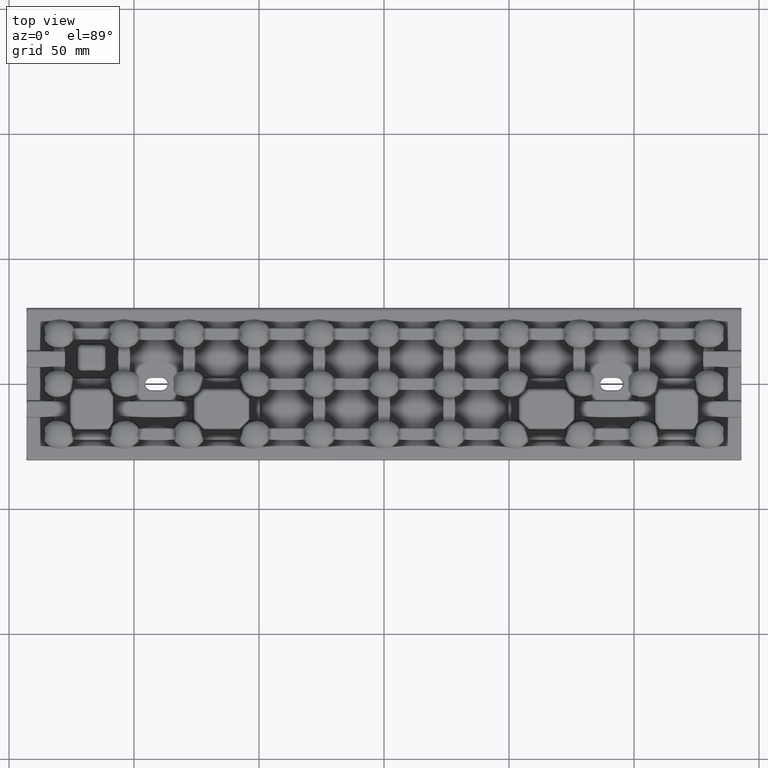
[diagram: clean part render]
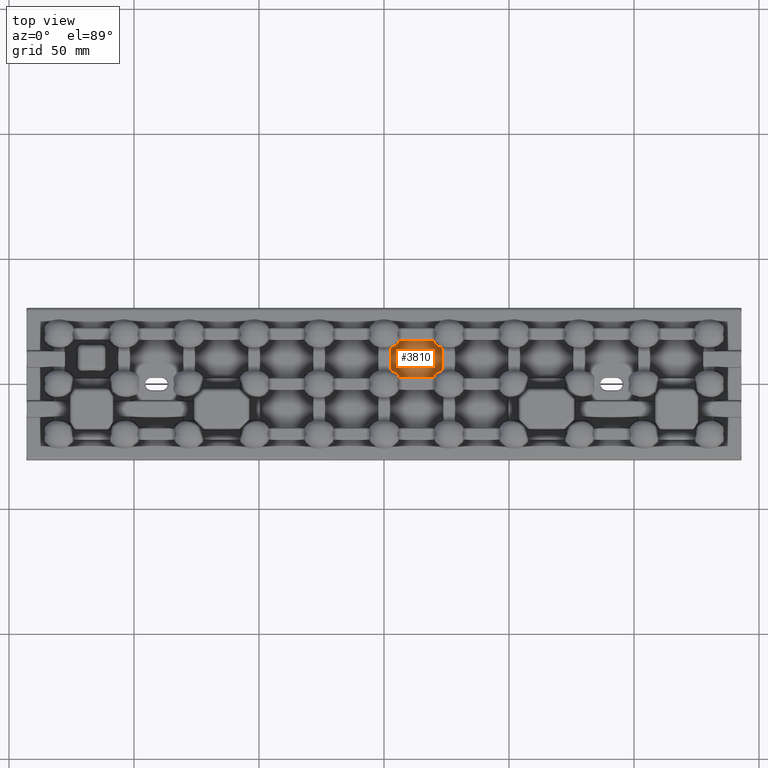
[diagram: same view with one face highlighted and labeled with its STEP entity id]
A machine part, top view. The second image highlights one B-rep face of the part: STEP entity #3810.
In plain terms, the highlighted planar face has unit normal (-0, 0, 1).
Its self-contained STEP definition (entity closure, byte-faithful):
#2206 = CARTESIAN_POINT ( 'NONE',  ( 21.09860470962306400, 15.63777386931141900, 2.000000000000001800 ) ) ;
#2478 = CARTESIAN_POINT ( 'NONE',  ( 19.87528341715053100, 2.741422193701774600, 2.000000000000000000 ) ) ;
#3810 = ADVANCED_FACE ( 'NONE', ( #48835 ), #59776, .T. ) ;
#5705 = CARTESIAN_POINT ( 'NONE',  ( 5.797112603548701900, 3.414774147119520500, 2.000000000000001800 ) ) ;
#5790 = LINE ( 'NONE', #41888, #7586 ) ;
#7410 = CARTESIAN_POINT ( 'NONE',  ( 2.741422193701766700, 14.53910680610570700, 2.000000000000000000 ) ) ;
#7415 = ORIENTED_EDGE ( 'NONE', *, *, #33229, .F. ) ;
#7477 = ORIENTED_EDGE ( 'NONE', *, *, #34860, .F. ) ;
#7586 = VECTOR ( 'NONE', #70255, 1000.000000000000000 ) ;
#7898 = CARTESIAN_POINT ( 'NONE',  ( 21.87780439658146700, 15.11663491878725000, 2.000000000000000000 ) ) ;
#7933 = CARTESIAN_POINT ( 'NONE',  ( 22.55362577035890900, 5.210396475648704700, 2.000000000000002200 ) ) ;
#8548 = CARTESIAN_POINT ( 'NONE',  ( 4.114033114891919100, 15.11236120509383500, 2.000000000000003100 ) ) ;
#11426 = CARTESIAN_POINT ( 'NONE',  ( 5.327867172749756200, 4.004861593216107400, 2.000000000000015100 ) ) ;
#12080 = LINE ( 'NONE', #49980, #70900 ) ;
#12880 = LINE ( 'NONE', #38719, #71686 ) ;
#13626 = CARTESIAN_POINT ( 'NONE',  ( 22.90016230161624100, 14.65342680097729500, 1.999999999999998700 ) ) ;
#13664 = CARTESIAN_POINT ( 'NONE',  ( 21.56537355590033300, 4.701689704480594800, 2.000000000000000000 ) ) ;
#14260 = CARTESIAN_POINT ( 'NONE',  ( 4.890083429877883200, 15.62888595811226500, 1.999999999999999600 ) ) ;
#14642 = DIRECTION ( 'NONE',  ( -2.312964634635800100E-016, 1.000000000000000000, -0.0000000000000000000 ) ) ;
#17108 = CARTESIAN_POINT ( 'NONE',  ( 4.443168567573571300, 4.696417050458692600, 1.999999999999980500 ) ) ;
#18181 = VERTEX_POINT ( 'NONE', #46616 ) ;
#18515 = VERTEX_POINT ( 'NONE', #21584 ) ;
#19362 = CARTESIAN_POINT ( 'NONE',  ( 20.96272174899003500, 4.252191948901858300, 1.999999999999600100 ) ) ;
#19966 = CARTESIAN_POINT ( 'NONE',  ( 5.315005840461123100, 16.00230770594038200, 1.999999999999083600 ) ) ;
#21529 = B_SPLINE_CURVE_WITH_KNOTS ( 'NONE', 3,
 ( #59012, #24865, #64693, #30577, #70410, #36271, #2206, #42038, #7898, #47775, #13626, #53496 ),
 .UNSPECIFIED., .F., .F.,
 ( 4, 2, 2, 2, 2, 4 ),
 ( 0.0000000000000000000, 0.001114944841971976200, 0.001672417262957968400, 0.002229889683943960200, 0.003344834525915956300, 0.004459779367887952400 ),
 .UNSPECIFIED. ) ;
#21584 = CARTESIAN_POINT ( 'NONE',  ( 6.124716643668667100, 17.25857780629786500, 2.000000000000000000 ) ) ;
#21787 = DIRECTION ( 'NONE',  ( 1.000000000000000000, -4.130293990420956100E-016, 0.0000000000000000000 ) ) ;
#22854 = CARTESIAN_POINT ( 'NONE',  ( 3.447161404629896200, 5.210168295953993200, 1.999999999999999100 ) ) ;
#23814 = CARTESIAN_POINT ( 'NONE',  ( 19.87528341715053100, 2.741422193701774600, 2.000000000000000000 ) ) ;
#24865 = CARTESIAN_POINT ( 'NONE',  ( 19.99803419202373400, 16.89885493394608000, 1.999999999999999100 ) ) ;
#25135 = CARTESIAN_POINT ( 'NONE',  ( 20.55524195587834100, 3.863107754414384600, 2.000000000000089700 ) ) ;
#25733 = CARTESIAN_POINT ( 'NONE',  ( 5.684709318734043400, 16.42632786501946600, 2.000000000000067100 ) ) ;
#25878 = VERTEX_POINT ( 'NONE', #23814 ) ;
#26202 = ORIENTED_EDGE ( 'NONE', *, *, #35196, .T. ) ;
#28613 = CARTESIAN_POINT ( 'NONE',  ( 2.741422193701767500, 5.460893193894252200, 2.000000000000000000 ) ) ;
#29973 = LINE ( 'NONE', #48790, #48695 ) ;
#30577 = CARTESIAN_POINT ( 'NONE',  ( 20.54772348950090300, 16.14509560246108300, 2.000000000000021800 ) ) ;
#30861 = CARTESIAN_POINT ( 'NONE',  ( 20.20530534545023500, 3.418597923065665300, 1.999999999999998700 ) ) ;
#31479 = CARTESIAN_POINT ( 'NONE',  ( 5.984074015503163800, 16.90802450039242200, 1.999999999999997100 ) ) ;
#32968 = VERTEX_POINT ( 'NONE', #44112 ) ;
#33229 = EDGE_CURVE ( 'NONE', #59327, #25878, #59057, .T. ) ;
#33239 = ORIENTED_EDGE ( 'NONE', *, *, #33851, .T. ) ;
#33320 = EDGE_CURVE ( 'NONE', #59327, #32968, #29973, .T. ) ;
#33640 = EDGE_CURVE ( 'NONE', #68326, #32968, #21529, .T. ) ;
#33851 = EDGE_CURVE ( 'NONE', #68326, #18515, #12080, .T. ) ;
#34200 = EDGE_CURVE ( 'NONE', #73421, #18515, #71313, .T. ) ;
#34532 = EDGE_CURVE ( 'NONE', #73421, #18181, #5790, .T. ) ;
#34860 = EDGE_CURVE ( 'NONE', #37818, #18181, #68076, .T. ) ;
#35196 = EDGE_CURVE ( 'NONE', #37818, #25878, #12880, .T. ) ;
#35963 = ORIENTED_EDGE ( 'NONE', *, *, #34532, .T. ) ;
#36271 = CARTESIAN_POINT ( 'NONE',  ( 20.95393234875431800, 15.75530069695248900, 2.000000000000604800 ) ) ;
#36304 = CARTESIAN_POINT ( 'NONE',  ( 23.25857780629830500, 5.460893199763809500, 2.000000000000000000 ) ) ;
#36543 = CARTESIAN_POINT ( 'NONE',  ( 19.93665489542193800, 2.921272174014320400, 2.000000000000000000 ) ) ;
#37161 = CARTESIAN_POINT ( 'NONE',  ( 6.124716643668667100, 17.25857780629786500, 2.000000000000000000 ) ) ;
#37278 = CARTESIAN_POINT ( 'NONE',  ( 23.25857780629830500, 5.460893199763809500, 2.000000000000000000 ) ) ;
#37818 = VERTEX_POINT ( 'NONE', #56711 ) ;
#38719 = CARTESIAN_POINT ( 'NONE',  ( 21.61223291411214100, 2.741422193701773800, 2.000000000000000000 ) ) ;
#39782 = CARTESIAN_POINT ( 'NONE',  ( 5.984493287605127800, 3.090948249939442900, 2.000000000000001300 ) ) ;
#41888 = CARTESIAN_POINT ( 'NONE',  ( 2.741422193701767500, 4.387767085887722000, 2.000000000000000000 ) ) ;
#42038 = CARTESIAN_POINT ( 'NONE',  ( 21.55062361644022700, 15.30768202563238100, 2.000000000000000900 ) ) ;
#42068 = CARTESIAN_POINT ( 'NONE',  ( 22.90037997865003300, 5.346642629162679400, 2.000000000000000400 ) ) ;
#42672 = CARTESIAN_POINT ( 'NONE',  ( 3.446407950269844800, 14.78961119562336900, 2.000000000000002200 ) ) ;
#43081 = ORIENTED_EDGE ( 'NONE', *, *, #33320, .T. ) ;
#44112 = CARTESIAN_POINT ( 'NONE',  ( 23.25857780629830200, 14.53910680023595800, 2.000000000000000000 ) ) ;
#45558 = CARTESIAN_POINT ( 'NONE',  ( 5.687668903276203600, 3.569745612315530900, 2.000000000000015500 ) ) ;
#46616 = CARTESIAN_POINT ( 'NONE',  ( 2.741422193701767500, 5.460893193894252200, 2.000000000000000000 ) ) ;
#47025 = AXIS2_PLACEMENT_3D ( 'NONE', #59024, #58921, #58861 ) ;
#47775 = CARTESIAN_POINT ( 'NONE',  ( 22.55163707640324600, 14.79023344848444000, 2.000000000000000400 ) ) ;
#47809 = CARTESIAN_POINT ( 'NONE',  ( 21.88620459317861100, 4.887762336800753000, 2.000000000000002200 ) ) ;
#48416 = CARTESIAN_POINT ( 'NONE',  ( 4.435021973265069300, 15.29853394021128600, 1.999999999999999100 ) ) ;
#48695 = VECTOR ( 'NONE', #14642, 1000.000000000000000 ) ;
#48790 = CARTESIAN_POINT ( 'NONE',  ( 23.25857780629830200, 15.61223291411218600, 2.000000000000000000 ) ) ;
#48835 = FACE_OUTER_BOUND ( 'NONE', #72075, .T. ) ;
#49980 = CARTESIAN_POINT ( 'NONE',  ( 4.387767085887584400, 17.25857780629786500, 2.000000000000000000 ) ) ;
#50794 = CARTESIAN_POINT ( 'NONE',  ( 19.87528341715068000, 17.25857780629786100, 2.000000000000000000 ) ) ;
#51304 = CARTESIAN_POINT ( 'NONE',  ( 5.050177006516424400, 4.254005156543632500, 1.999999999999980500 ) ) ;
#53496 = CARTESIAN_POINT ( 'NONE',  ( 23.25857780629830200, 14.53910680023595800, 2.000000000000000000 ) ) ;
#53531 = CARTESIAN_POINT ( 'NONE',  ( 21.11062102002294300, 4.371657058148620000, 2.000000000000000400 ) ) ;
#54134 = CARTESIAN_POINT ( 'NONE',  ( 5.037924498264197300, 15.74836117042494400, 1.999999999999083600 ) ) ;
#56711 = CARTESIAN_POINT ( 'NONE',  ( 6.124716643668748800, 2.741422193701780000, 2.000000000000000000 ) ) ;
#57016 = CARTESIAN_POINT ( 'NONE',  ( 4.117789766803905800, 4.885678013079520100, 1.999999999999999600 ) ) ;
#58861 = DIRECTION ( 'NONE',  ( 1.000000000000000000, 0.0000000000000000000, 0.0000000000000000000 ) ) ;
#58921 = DIRECTION ( 'NONE',  ( -0.0000000000000000000, 0.0000000000000000000, 1.000000000000000000 ) ) ;
#59012 = CARTESIAN_POINT ( 'NONE',  ( 19.87528341715068000, 17.25857780629786100, 2.000000000000000000 ) ) ;
#59024 = CARTESIAN_POINT ( 'NONE',  ( 0.0000000000000000000, 0.0000000000000000000, 2.000000000000000000 ) ) ;
#59057 = B_SPLINE_CURVE_WITH_KNOTS ( 'NONE', 3,
 ( #36304, #42068, #7933, #47809, #13664, #53531, #19362, #59295, #25135, #64967, #30861, #70693, #36543, #2478 ),
 .UNSPECIFIED., .F., .F.,
 ( 4, 2, 2, 2, 2, 2, 4 ),
 ( 9.816527170744710400E-017, 0.001111486230891880600, 0.002222972461783662700, 0.002778715577229552500, 0.003334458692675442800, 0.003890201808121332700, 0.004445944923567223000 ),
 .UNSPECIFIED. ) ;
#59195 = ORIENTED_EDGE ( 'NONE', *, *, #34200, .F. ) ;
#59295 = CARTESIAN_POINT ( 'NONE',  ( 20.68537160262496500, 3.998077177243539300, 1.999999999999600500 ) ) ;
#59327 = VERTEX_POINT ( 'NONE', #37278 ) ;
#59658 = CARTESIAN_POINT ( 'NONE',  ( 3.099606589131211500, 14.65335309428694700, 2.000000000000000000 ) ) ;
#59776 = PLANE ( 'NONE',  #47025 ) ;
#59897 = CARTESIAN_POINT ( 'NONE',  ( 5.445073331749745700, 16.13723412517457900, 2.000000000000068400 ) ) ;
#61432 = DIRECTION ( 'NONE',  ( -1.000000000000000000, 1.652117596168382600E-016, -0.0000000000000000000 ) ) ;
#62497 = CARTESIAN_POINT ( 'NONE',  ( 6.063438288028590000, 2.920999273000666600, 2.000000000000000000 ) ) ;
#62746 = CARTESIAN_POINT ( 'NONE',  ( 3.099585995928849400, 5.346653474108954600, 2.000000000000000900 ) ) ;
#64693 = CARTESIAN_POINT ( 'NONE',  ( 20.18921699528689500, 16.58015194439513400, 2.000000000000021300 ) ) ;
#64967 = CARTESIAN_POINT ( 'NONE',  ( 20.31559820724581700, 3.574081393938461500, 2.000000000000089700 ) ) ;
#65581 = CARTESIAN_POINT ( 'NONE',  ( 5.795012012463486100, 16.58190241218924000, 1.999999999999996200 ) ) ;
#68076 = B_SPLINE_CURVE_WITH_KNOTS ( 'NONE', 3,
 ( #73673, #62497, #39782, #5705, #45558, #11426, #51304, #17108, #57016, #22854, #62746, #28613 ),
 .UNSPECIFIED., .F., .F.,
 ( 4, 2, 2, 2, 2, 4 ),
 ( 5.818439421673296400E-018, 0.0005610143110296187100, 0.001122028622059231600, 0.002244057244118456600, 0.003366085866177682100, 0.004488114488236907100 ),
 .UNSPECIFIED. ) ;
#68326 = VERTEX_POINT ( 'NONE', #50794 ) ;
#70255 = DIRECTION ( 'NONE',  ( 8.673617379884253600E-017, -1.000000000000000000, 0.0000000000000000000 ) ) ;
#70410 = CARTESIAN_POINT ( 'NONE',  ( 20.67899717475183500, 16.00835536796482800, 2.000000000000604800 ) ) ;
#70693 = CARTESIAN_POINT ( 'NONE',  ( 20.01599760934020400, 3.092145851144546800, 2.000000000000000000 ) ) ;
#70900 = VECTOR ( 'NONE', #61432, 1000.000000000000000 ) ;
#71049 = CARTESIAN_POINT ( 'NONE',  ( 2.741422193701766700, 14.53910680610570700, 2.000000000000000000 ) ) ;
#71298 = CARTESIAN_POINT ( 'NONE',  ( 6.063361892173083400, 17.07877684787493100, 1.999999999999999100 ) ) ;
#71313 = B_SPLINE_CURVE_WITH_KNOTS ( 'NONE', 3,
 ( #71049, #59658, #42672, #8548, #48416, #14260, #54134, #19966, #59897, #25733, #65581, #31479, #71298, #37161 ),
 .UNSPECIFIED., .F., .F.,
 ( 4, 2, 2, 2, 2, 2, 4 ),
 ( 8.673617379884034500E-019, 0.001111915370787439200, 0.002223830741574878300, 0.002779788426968593800, 0.003335746112362309200, 0.003891703797756025600, 0.004447661483149741000 ),
 .UNSPECIFIED. ) ;
#71686 = VECTOR ( 'NONE', #21787, 1000.000000000000000 ) ;
#72075 = EDGE_LOOP ( 'NONE', ( #7415, #43081, #73359, #33239, #59195, #35963, #7477, #26202 ) ) ;
#73359 = ORIENTED_EDGE ( 'NONE', *, *, #33640, .F. ) ;
#73421 = VERTEX_POINT ( 'NONE', #7410 ) ;
#73673 = CARTESIAN_POINT ( 'NONE',  ( 6.124716643668748800, 2.741422193701780000, 2.000000000000000000 ) ) ;